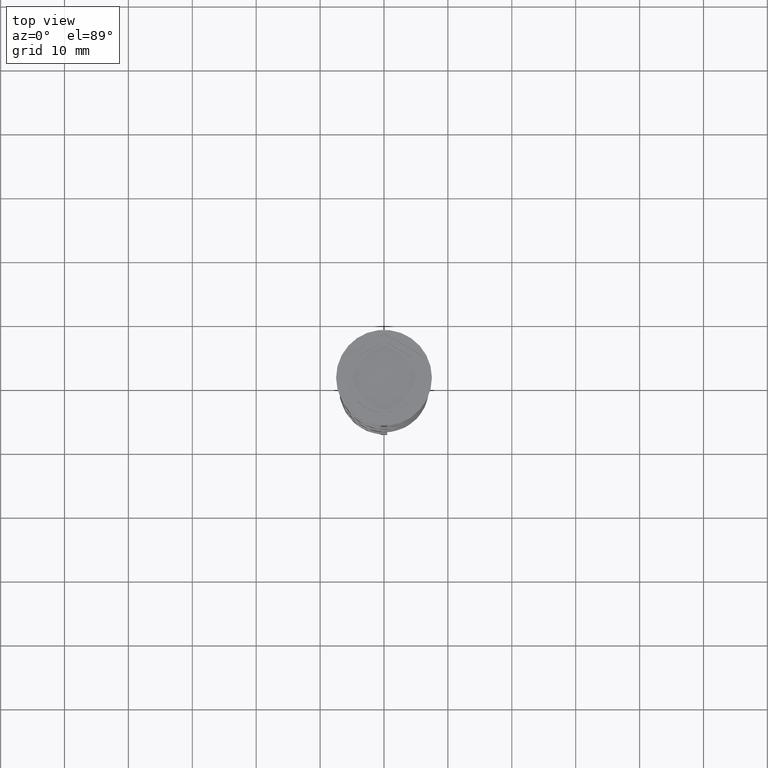
[diagram: clean part render]
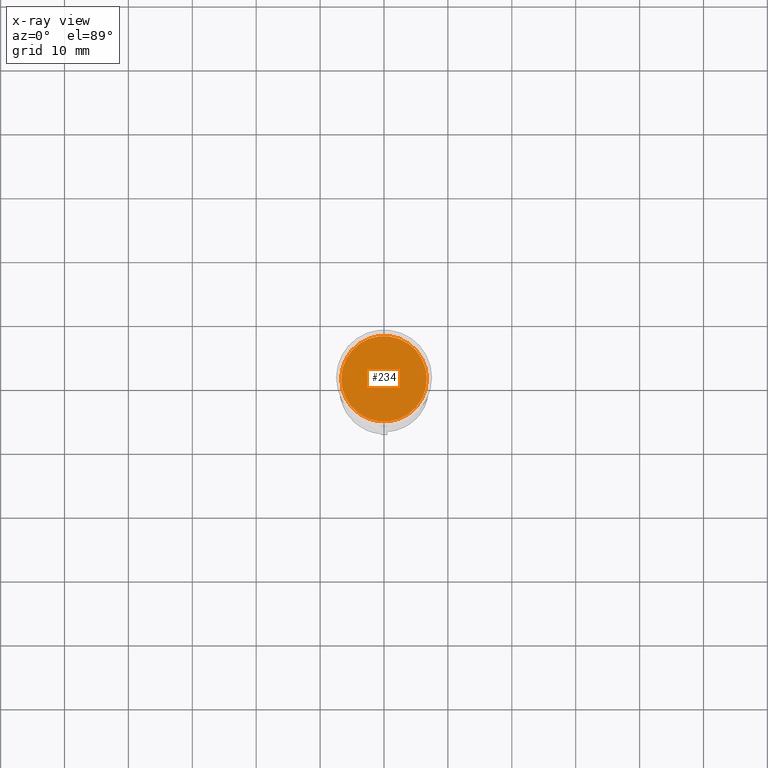
[diagram: x-ray — body ghosted, one internal face saturated and labeled with its STEP entity id]
A machine part, top view, then the same camera in x-ray: the body is ghosted and one INTERNAL B-rep face — a face not visible from any outside direction — is saturated and labeled: STEP entity #234.
In plain terms, the highlighted planar face has unit normal (0, 0, -1).
Its self-contained STEP definition (entity closure, byte-faithful):
#91 = DIRECTION ( 'NONE',  ( -1.000000000000000000, 0.000000000000000000, -0.000000000000000000 ) ) ;
#173 = DIRECTION ( 'NONE',  ( -1.000000000000000000, 0.000000000000000000, 0.000000000000000000 ) ) ;
#192 = DIRECTION ( 'NONE',  ( -0.000000000000000000, -0.000000000000000000, 1.000000000000000000 ) ) ;
#226 = VERTEX_POINT ( 'NONE', #3503 ) ;
#234 = ADVANCED_FACE ( 'NONE', ( #2050 ), #2335, .F. ) ;
#692 = CARTESIAN_POINT ( 'NONE',  ( -6.700000000000001066, 0.000000000000000000, -10.50000000000000178 ) ) ;
#813 = CARTESIAN_POINT ( 'NONE',  ( 0.000000000000000000, 0.000000000000000000, -10.50000000000000178 ) ) ;
#946 = DIRECTION ( 'NONE',  ( 0.000000000000000000, 0.000000000000000000, -1.000000000000000000 ) ) ;
#981 = AXIS2_PLACEMENT_3D ( 'NONE', #813, #192, #1029 ) ;
#1029 = DIRECTION ( 'NONE',  ( -1.000000000000000000, 0.000000000000000000, 0.000000000000000000 ) ) ;
#1107 = CIRCLE ( 'NONE', #981, 6.700000000000001066 ) ;
#1447 = CIRCLE ( 'NONE', #2215, 6.700000000000001066 ) ;
#1675 = ORIENTED_EDGE ( 'NONE', *, *, #3433, .T. ) ;
#1833 = VERTEX_POINT ( 'NONE', #692 ) ;
#2050 = FACE_OUTER_BOUND ( 'NONE', #3244, .T. ) ;
#2154 = DIRECTION ( 'NONE',  ( -0.000000000000000000, -0.000000000000000000, 1.000000000000000000 ) ) ;
#2215 = AXIS2_PLACEMENT_3D ( 'NONE', #2674, #2154, #173 ) ;
#2335 = PLANE ( 'NONE',  #2883 ) ;
#2401 = ORIENTED_EDGE ( 'NONE', *, *, #3444, .T. ) ;
#2674 = CARTESIAN_POINT ( 'NONE',  ( 0.000000000000000000, 0.000000000000000000, -10.50000000000000178 ) ) ;
#2883 = AXIS2_PLACEMENT_3D ( 'NONE', #3445, #946, #91 ) ;
#3244 = EDGE_LOOP ( 'NONE', ( #1675, #2401 ) ) ;
#3433 = EDGE_CURVE ( 'NONE', #1833, #226, #1107, .T. ) ;
#3444 = EDGE_CURVE ( 'NONE', #226, #1833, #1447, .T. ) ;
#3445 = CARTESIAN_POINT ( 'NONE',  ( 0.000000000000000000, 0.000000000000000000, -10.50000000000000178 ) ) ;
#3503 = CARTESIAN_POINT ( 'NONE',  ( 6.700000000000001066, 8.388830574159370862E-16, -10.50000000000000178 ) ) ;